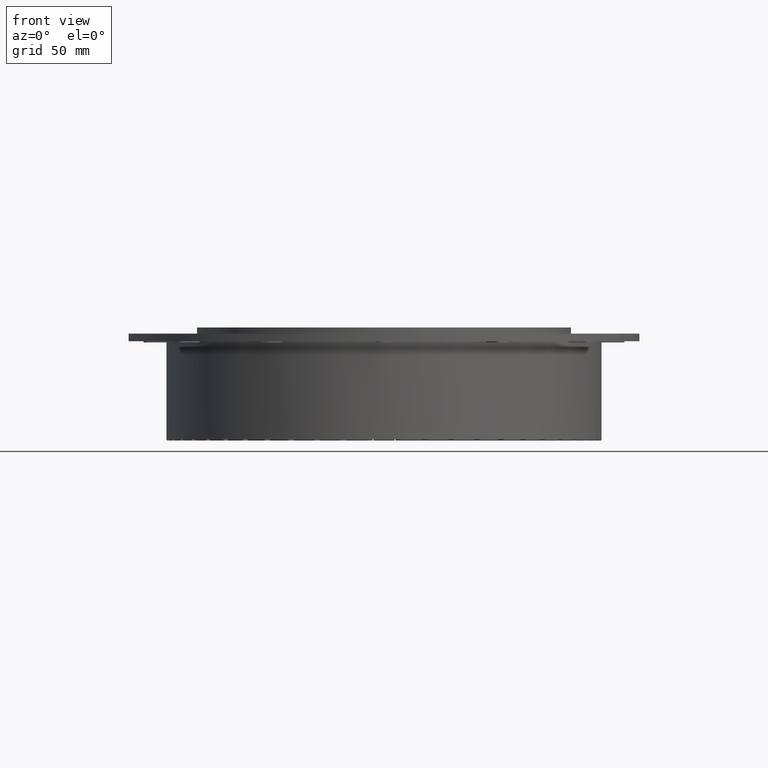
[diagram: clean part render]
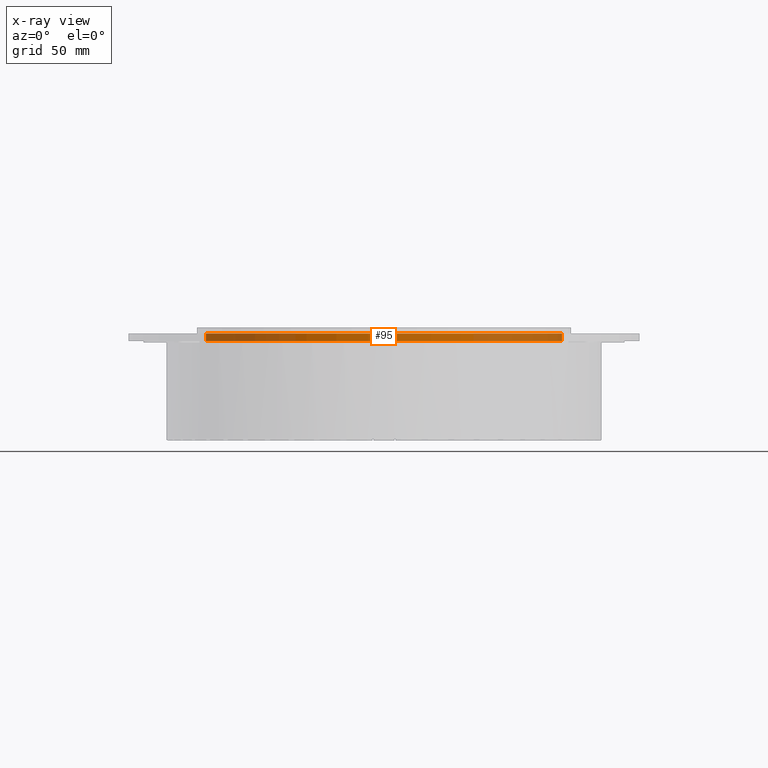
[diagram: x-ray — body ghosted, one internal face saturated and labeled with its STEP entity id]
A machine part, front view, then the same camera in x-ray: the body is ghosted and one INTERNAL B-rep face — a face not visible from any outside direction — is saturated and labeled: STEP entity #95.
In plain terms, the highlighted cylindrical surface (bore or boss wall) has radius 116.75 mm, axis along (-0, -0, -1).
Its self-contained STEP definition (entity closure, byte-faithful):
#68=CARTESIAN_POINT('',(8.328167E-015,1.463011E-014,69.099999999999994));
#69=DIRECTION('',(-7.959232E-017,-2.332426E-016,-1.0));
#70=DIRECTION('',(-0.919065746598751,0.394104241830611,-1.877131E-017));
#71=AXIS2_PLACEMENT_3D('',#68,#69,#70);
#72=CYLINDRICAL_SURFACE('',#71,116.75);
#73=CARTESIAN_POINT('',(107.30092591540415,-46.011670233723862,64.099999999999994));
#74=VERTEX_POINT('',#73);
#75=CARTESIAN_POINT('',(7.930205E-015,1.346390E-014,64.099999999999994));
#76=DIRECTION('',(-1.725207E-017,7.397852E-018,1.0));
#77=DIRECTION('',(-0.919065746598751,0.394104241830611,-1.877131E-017));
#78=AXIS2_PLACEMENT_3D('',#75,#76,#77);
#79=CIRCLE('',#78,116.75);
#80=EDGE_CURVE('',#74,#74,#79,.T.);
#81=ORIENTED_EDGE('',*,*,#80,.F.);
#82=EDGE_LOOP('',(#81));
#83=FACE_OUTER_BOUND('',#82,.T.);
#84=CARTESIAN_POINT('',(107.30092591540415,-46.011670233723862,69.099999999999994));
#85=VERTEX_POINT('',#84);
#86=CARTESIAN_POINT('',(8.328167E-015,1.463011E-014,69.099999999999994));
#87=DIRECTION('',(1.725207E-017,-7.397852E-018,-1.0));
#88=DIRECTION('',(-0.919065746598751,0.394104241830611,-1.877131E-017));
#89=AXIS2_PLACEMENT_3D('',#86,#87,#88);
#90=CIRCLE('',#89,116.75);
#91=EDGE_CURVE('',#85,#85,#90,.T.);
#92=ORIENTED_EDGE('',*,*,#91,.F.);
#93=EDGE_LOOP('',(#92));
#94=FACE_BOUND('',#93,.T.);
#95=ADVANCED_FACE('',(#83,#94),#72,.F.);